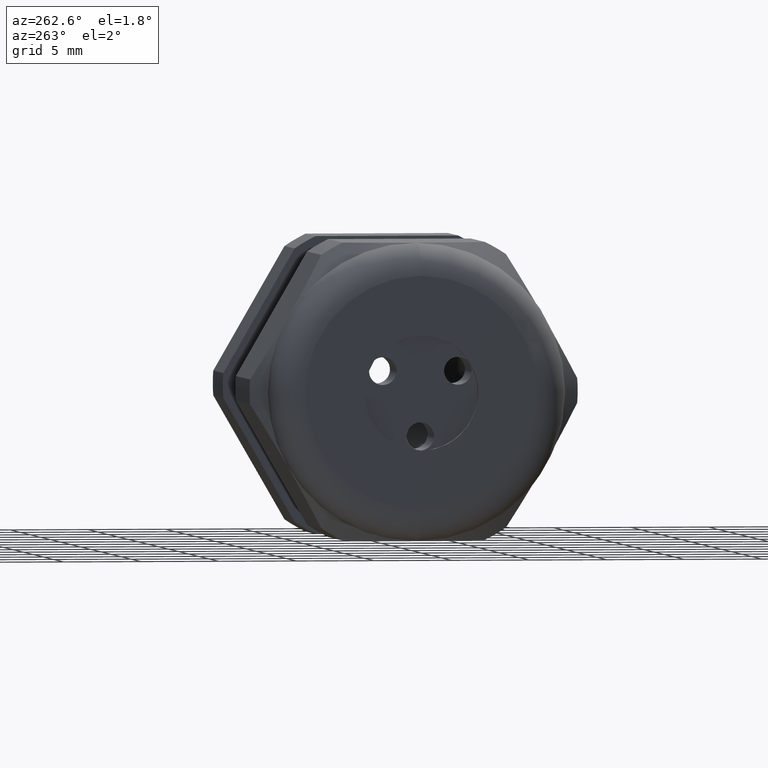
[diagram: clean part render]
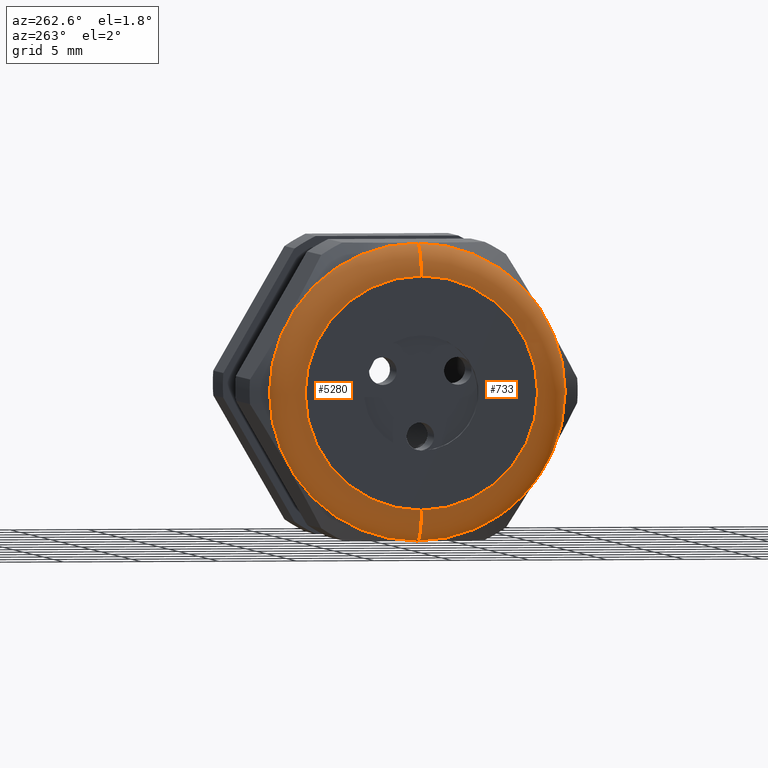
[diagram: same view with one multi-face feature highlighted, each face labeled with its STEP entity id]
A machine part, auxiliary view. The highlighted faces form ONE feature: a constant-radius fillet chain: 2 tangent blend faces with common blend radius 2.032 mm. The faces share edges in the B-rep.
Their STEP definitions:
[1] entity #733 (Torus):
#525 = EDGE_CURVE ( 'NONE', #5285, #5281, #2764, .T. ) ;
#591 = EDGE_CURVE ( 'NONE', #5288, #5377, #2904, .T. ) ;
#733 = ADVANCED_FACE ( 'NONE', ( #3087 ), #3086, .T. ) ;
#734 = EDGE_LOOP ( 'NONE', ( #735, #736, #737, #738 ) ) ;
#735 = ORIENTED_EDGE ( 'NONE', *, *, #5282, .F. ) ;
#736 = ORIENTED_EDGE ( 'NONE', *, *, #525, .F. ) ;
#737 = ORIENTED_EDGE ( 'NONE', *, *, #5302, .T. ) ;
#738 = ORIENTED_EDGE ( 'NONE', *, *, #591, .F. ) ;
#2761 = DIRECTION ( 'NONE',  ( 0.0000000000000000000, 0.0000000000000000000, 1.000000000000000000 ) ) ;
#2762 = DIRECTION ( 'NONE',  ( 1.000000000000000000, 0.0000000000000000000, 0.0000000000000000000 ) ) ;
#2763 = AXIS2_PLACEMENT_3D ( 'NONE', #2770, #2762, #2761 ) ;
#2764 = CIRCLE ( 'NONE', #2763, 0.3750000000000001100 ) ;
#2770 = CARTESIAN_POINT ( 'NONE',  ( -1.100000000000000100, 0.0000000000000000000, 0.0000000000000000000 ) ) ;
#2900 = DIRECTION ( 'NONE',  ( 0.0000000000000000000, 0.0000000000000000000, 1.000000000000000000 ) ) ;
#2901 = DIRECTION ( 'NONE',  ( -1.000000000000000000, 0.0000000000000000000, 0.0000000000000000000 ) ) ;
#2902 = CARTESIAN_POINT ( 'NONE',  ( -1.179999999999999900, 0.0000000000000000000, 0.0000000000000000000 ) ) ;
#2903 = AXIS2_PLACEMENT_3D ( 'NONE', #2902, #2901, #2900 ) ;
#2904 = CIRCLE ( 'NONE', #2903, 0.2950000000000001000 ) ;
#3083 = DIRECTION ( 'NONE',  ( 0.0000000000000000000, 0.0000000000000000000, 1.000000000000000000 ) ) ;
#3084 = DIRECTION ( 'NONE',  ( -1.000000000000000000, 0.0000000000000000000, 0.0000000000000000000 ) ) ;
#3085 = AXIS2_PLACEMENT_3D ( 'NONE', #3092, #3084, #3083 ) ;
#3086 = TOROIDAL_SURFACE ( 'NONE', #3085, 0.2950000000000001000, 0.08000000000000000200 ) ;
#3087 = FACE_OUTER_BOUND ( 'NONE', #734, .T. ) ;
#3092 = CARTESIAN_POINT ( 'NONE',  ( -1.100000000000000100, 0.0000000000000000000, 0.0000000000000000000 ) ) ;
#4739 = DIRECTION ( 'NONE',  ( 0.0000000000000000000, -1.224646799147353500E-016, 1.000000000000000000 ) ) ;
#4740 = DIRECTION ( 'NONE',  ( 0.0000000000000000000, 1.000000000000000000, 1.224646799147353200E-016 ) ) ;
#4741 = CARTESIAN_POINT ( 'NONE',  ( -1.100000000000000100, 3.612708057484693200E-017, -0.2950000000000001000 ) ) ;
#4742 = AXIS2_PLACEMENT_3D ( 'NONE', #4741, #4740, #4739 ) ;
#4743 = CIRCLE ( 'NONE', #4742, 0.08000000000000000200 ) ;
#4744 = CARTESIAN_POINT ( 'NONE',  ( -1.100000000000000100, 0.0000000000000000000, -0.3750000000000001100 ) ) ;
#4794 = CARTESIAN_POINT ( 'NONE',  ( -1.179999999999999900, 4.102566777143634000E-017, -0.2950000000000001000 ) ) ;
#4795 = CARTESIAN_POINT ( 'NONE',  ( -1.100000000000000100, 4.592425496802576100E-017, 0.3750000000000001100 ) ) ;
#4822 = DIRECTION ( 'NONE',  ( 0.0000000000000000000, 0.0000000000000000000, -1.000000000000000000 ) ) ;
#4823 = DIRECTION ( 'NONE',  ( 0.0000000000000000000, -1.000000000000000000, 0.0000000000000000000 ) ) ;
#4824 = CARTESIAN_POINT ( 'NONE',  ( -1.100000000000000100, 0.0000000000000000000, 0.2950000000000001000 ) ) ;
#4825 = AXIS2_PLACEMENT_3D ( 'NONE', #4824, #4823, #4822 ) ;
#4826 = CIRCLE ( 'NONE', #4825, 0.08000000000000000200 ) ;
#4941 = CARTESIAN_POINT ( 'NONE',  ( -1.179999999999999900, 0.0000000000000000000, 0.2950000000000001000 ) ) ;
#5281 = VERTEX_POINT ( 'NONE', #4744 ) ;
#5282 = EDGE_CURVE ( 'NONE', #5281, #5288, #4743, .T. ) ;
#5285 = VERTEX_POINT ( 'NONE', #4795 ) ;
#5288 = VERTEX_POINT ( 'NONE', #4794 ) ;
#5302 = EDGE_CURVE ( 'NONE', #5285, #5377, #4826, .T. ) ;
#5377 = VERTEX_POINT ( 'NONE', #4941 ) ;
[2] entity #5280 (Torus):
#4738 = CIRCLE ( 'NONE', #4799, 0.3750000000000001100 ) ;
#4739 = DIRECTION ( 'NONE',  ( 0.0000000000000000000, -1.224646799147353500E-016, 1.000000000000000000 ) ) ;
#4740 = DIRECTION ( 'NONE',  ( 0.0000000000000000000, 1.000000000000000000, 1.224646799147353200E-016 ) ) ;
#4741 = CARTESIAN_POINT ( 'NONE',  ( -1.100000000000000100, 3.612708057484693200E-017, -0.2950000000000001000 ) ) ;
#4742 = AXIS2_PLACEMENT_3D ( 'NONE', #4741, #4740, #4739 ) ;
#4743 = CIRCLE ( 'NONE', #4742, 0.08000000000000000200 ) ;
#4744 = CARTESIAN_POINT ( 'NONE',  ( -1.100000000000000100, 0.0000000000000000000, -0.3750000000000001100 ) ) ;
#4745 = DIRECTION ( 'NONE',  ( 0.0000000000000000000, 0.0000000000000000000, 1.000000000000000000 ) ) ;
#4746 = DIRECTION ( 'NONE',  ( -1.000000000000000000, 0.0000000000000000000, 0.0000000000000000000 ) ) ;
#4747 = AXIS2_PLACEMENT_3D ( 'NONE', #4749, #4746, #4745 ) ;
#4748 = TOROIDAL_SURFACE ( 'NONE', #4747, 0.2950000000000001000, 0.08000000000000000200 ) ;
#4749 = CARTESIAN_POINT ( 'NONE',  ( -1.100000000000000100, 0.0000000000000000000, 0.0000000000000000000 ) ) ;
#4750 = DIRECTION ( 'NONE',  ( 0.0000000000000000000, 0.0000000000000000000, 1.000000000000000000 ) ) ;
#4751 = DIRECTION ( 'NONE',  ( -1.000000000000000000, 0.0000000000000000000, 0.0000000000000000000 ) ) ;
#4752 = CARTESIAN_POINT ( 'NONE',  ( -1.179999999999999900, 0.0000000000000000000, 0.0000000000000000000 ) ) ;
#4753 = AXIS2_PLACEMENT_3D ( 'NONE', #4752, #4751, #4750 ) ;
#4754 = CIRCLE ( 'NONE', #4753, 0.2950000000000001000 ) ;
#4755 = FACE_OUTER_BOUND ( 'NONE', #5283, .T. ) ;
#4794 = CARTESIAN_POINT ( 'NONE',  ( -1.179999999999999900, 4.102566777143634000E-017, -0.2950000000000001000 ) ) ;
#4795 = CARTESIAN_POINT ( 'NONE',  ( -1.100000000000000100, 4.592425496802576100E-017, 0.3750000000000001100 ) ) ;
#4796 = DIRECTION ( 'NONE',  ( 0.0000000000000000000, 0.0000000000000000000, 1.000000000000000000 ) ) ;
#4797 = DIRECTION ( 'NONE',  ( 1.000000000000000000, 0.0000000000000000000, 0.0000000000000000000 ) ) ;
#4798 = CARTESIAN_POINT ( 'NONE',  ( -1.100000000000000100, 0.0000000000000000000, 0.0000000000000000000 ) ) ;
#4799 = AXIS2_PLACEMENT_3D ( 'NONE', #4798, #4797, #4796 ) ;
#4822 = DIRECTION ( 'NONE',  ( 0.0000000000000000000, 0.0000000000000000000, -1.000000000000000000 ) ) ;
#4823 = DIRECTION ( 'NONE',  ( 0.0000000000000000000, -1.000000000000000000, 0.0000000000000000000 ) ) ;
#4824 = CARTESIAN_POINT ( 'NONE',  ( -1.100000000000000100, 0.0000000000000000000, 0.2950000000000001000 ) ) ;
#4825 = AXIS2_PLACEMENT_3D ( 'NONE', #4824, #4823, #4822 ) ;
#4826 = CIRCLE ( 'NONE', #4825, 0.08000000000000000200 ) ;
#4941 = CARTESIAN_POINT ( 'NONE',  ( -1.179999999999999900, 0.0000000000000000000, 0.2950000000000001000 ) ) ;
#5278 = EDGE_CURVE ( 'NONE', #5377, #5288, #4754, .T. ) ;
#5279 = ORIENTED_EDGE ( 'NONE', *, *, #5278, .F. ) ;
#5280 = ADVANCED_FACE ( 'NONE', ( #4755 ), #4748, .T. ) ;
#5281 = VERTEX_POINT ( 'NONE', #4744 ) ;
#5282 = EDGE_CURVE ( 'NONE', #5281, #5288, #4743, .T. ) ;
#5283 = EDGE_LOOP ( 'NONE', ( #5287, #5286, #5279, #5305 ) ) ;
#5284 = EDGE_CURVE ( 'NONE', #5281, #5285, #4738, .T. ) ;
#5285 = VERTEX_POINT ( 'NONE', #4795 ) ;
#5286 = ORIENTED_EDGE ( 'NONE', *, *, #5282, .T. ) ;
#5287 = ORIENTED_EDGE ( 'NONE', *, *, #5284, .F. ) ;
#5288 = VERTEX_POINT ( 'NONE', #4794 ) ;
#5302 = EDGE_CURVE ( 'NONE', #5285, #5377, #4826, .T. ) ;
#5305 = ORIENTED_EDGE ( 'NONE', *, *, #5302, .F. ) ;
#5377 = VERTEX_POINT ( 'NONE', #4941 ) ;